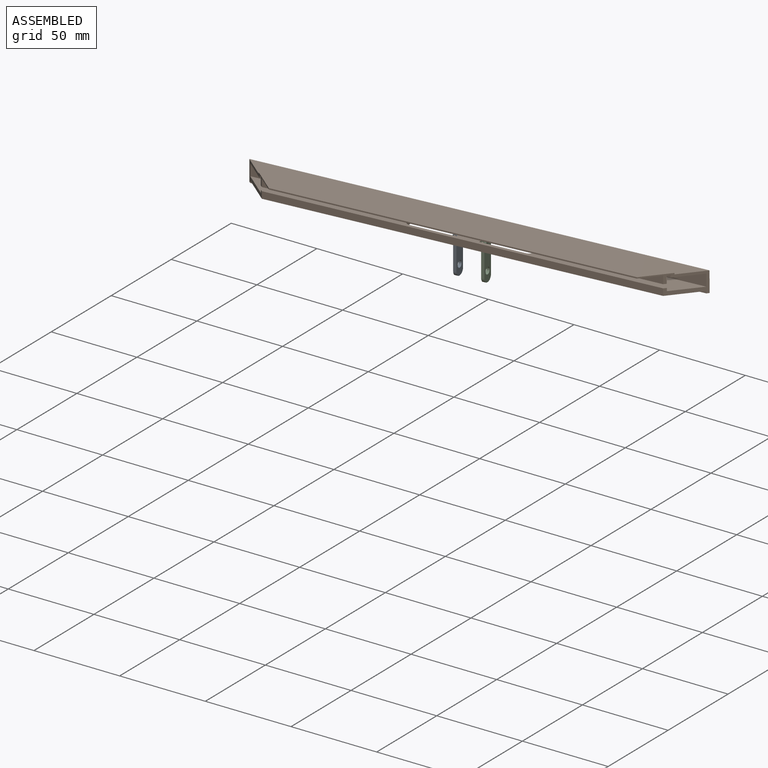
[diagram: assembled view]
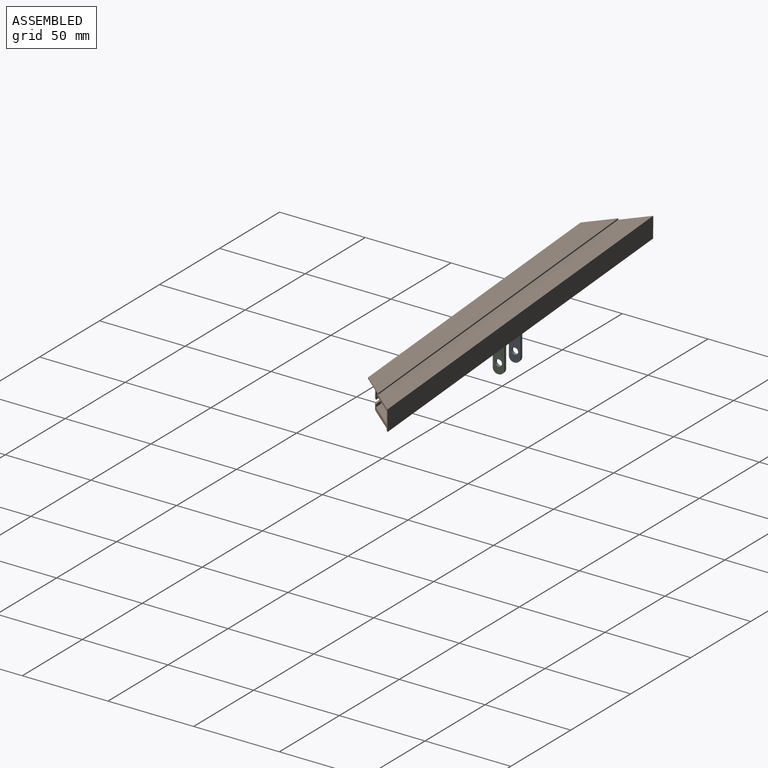
[diagram: assembled view, second angle]
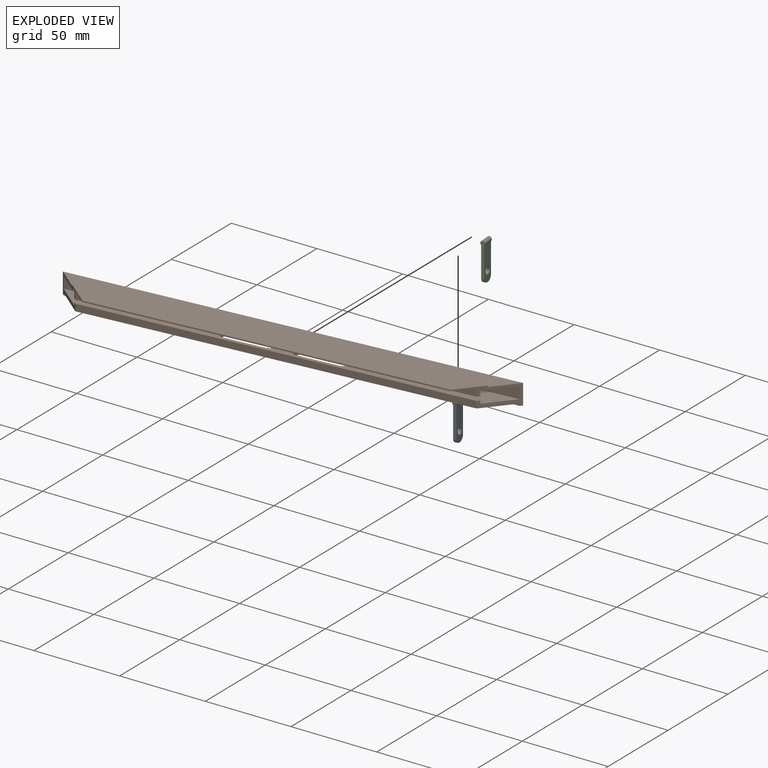
[diagram: exploded view]
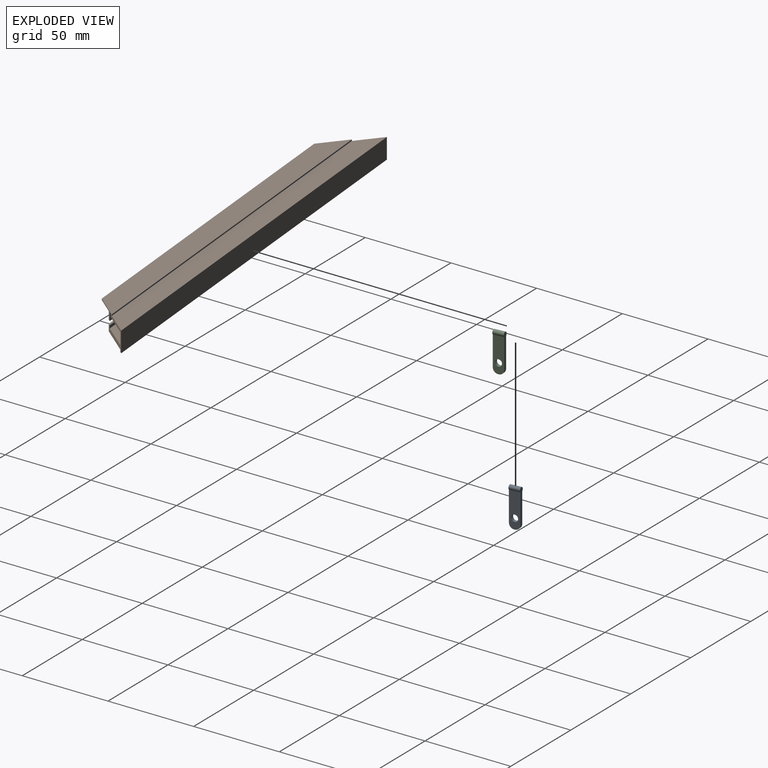
[diagram: exploded view, second angle]
ASSEMBLY  parts=3 mates=2
PART A: 9 faces, bbox 22.8x6.4x2.7 mm
  f0: plane 19.77x2.71mm, normal (0,1,0), area 36.5mm2, adj f3,f6,f7,f8
  f1: plane 19.77x2.71mm, normal (0,-1,0), area 36.5mm2, adj f2,f6,f7,f8
  f2: cylinder r=3mm len=3mm, axis (0,0,1), area 8.4mm2, adj f1,f4,f6,f7
  f3: cylinder r=3mm len=3mm, axis (0,0,-1), area 8.4mm2, adj f0,f4,f6,f7
  f4: plane 1.79x0.35mm, normal (-1,0,0), area 0.6mm2, adj f2,f3,f6,f7
  f5: cylinder r=1.91mm len=3.82mm, axis (0,0,-1), area 21.5mm2, adj f6,f7
  f6: plane 20.39x6.35mm, normal (0,0,-1), area 114.2mm2, adj f0,f1,f2,f3,f4,f5,f8
  f7: plane 20.39x6.35mm, normal (0,0,1), area 114.2mm2, adj f0,f1,f2,f3,f4,f5,f8
  f8: cylinder r=1.36mm len=6.35mm, axis (0,-1,0), area 41.7mm2, adj f0,f1,f6,f7
PART B: 42 faces, bbox 254x25.4x12.7 mm
  f0: cylinder r=0.81mm len=1.61mm, axis (0,1,0), area 4.6mm2, adj f1,f30
  f1: plane 1.61x1.61mm, normal (0,1,0), area 2mm2, adj f0
  f2: plane 2.29x2.15mm, normal (-1,0,0), area 4.9mm2, adj f4,f5,f26,f27
  f3: plane 25.4x25.4mm, normal (0.71,-0.71,0), area 120.2mm2, adj f6,f7,f8,f11,f12,f13,f14,f15
  f4: cylinder r=3mm len=3mm, axis (0,0,1), area 10.8mm2, adj f2,f10,f26,f27
  f5: cylinder r=3mm len=3mm, axis (0,0,-1), area 10.8mm2, adj f2,f9,f26,f27
  f6: plane 221.53x3.99mm, normal (0,-1,0), area 883.2mm2, adj f3,f7,f27,f29
  f7: plane 224.08x1.27mm, normal (0,0,1), area 283.5mm2, adj f3,f6,f8,f29
  f8: plane 224.08x1.7mm, normal (0,1,0), area 380.2mm2, adj f3,f7,f26,f29
  f9: plane 25.67x2.29mm, normal (0,1,0), area 56.7mm2, adj f5,f26,f27,f28,f38
  f10: plane 25.67x2.29mm, normal (0,-1,0), area 56.7mm2, adj f4,f26,f27,f28,f40
  f11: plane 229.51x0.75mm, normal (0,1,0), area 173.2mm2, adj f3,f13,f25,f29
  f12: plane 254x11.95mm, normal (0,1,0), area 3034.1mm2, adj f3,f13,f15,f29
  f13: plane 254x12.25mm, normal (0,0,1), area 2960.8mm2, adj f3,f11,f12,f29
  f14: plane 251.73x1.26mm, normal (0,-1,0), area 316.4mm2, adj f3,f15,f27,f29
  f15: plane 254x1.14mm, normal (0,0,-1), area 287mm2, adj f3,f12,f14,f29
  f16: plane 221.53x9.17mm, normal (0,0,-1), area 1946.5mm2, adj f3,f23,f24,f29
  f17: plane 251.73x6.87mm, normal (0,-1,0), area 1729.7mm2, adj f3,f18,f26,f29
  f18: plane 251.73x12.47mm, normal (0,0,-1), area 2983.5mm2, adj f3,f17,f19,f29
  f19: plane 226.79x1.53mm, normal (0,-1,0), area 346.3mm2, adj f3,f18,f20,f29
  f20: plane 226.79x1.36mm, normal (0,0,-1), area 306mm2, adj f3,f19,f21,f29
  f21: plane 224.08x4.5mm, normal (0,1,0), area 1007.4mm2, adj f3,f20,f22,f29
  f22: plane 224.08x1.27mm, normal (0,0,-1), area 283.5mm2, adj f3,f21,f23,f29
  f23: plane 221.53x4.5mm, normal (0,-1,0), area 996mm2, adj f3,f16,f22,f29
  f24: plane 203.2x0.75mm, normal (0,-1,0), area 153.4mm2, adj f3,f16,f25,f29
  f25: plane 229.51x13.15mm, normal (0,0,1), area 2845.6mm2, adj f3,f11,f24,f29
  f26: plane 251.73x13.83mm, normal (0,0,1), area 2829.9mm2, adj f2,f3,f4,f5,f8,f9,f10,f17
  f27: plane 251.73x15.1mm, normal (0,0,-1), area 3113.4mm2, adj f2,f3,f4,f5,f6,f9,f10,f14
  f28: plane 8.15x2.29mm, normal (1,0,0), area 18.7mm2, adj f9,f10,f26,f27
  f29: plane 25.4x25.4mm, normal (-0.71,-0.71,0), area 120.2mm2, adj f6,f7,f8,f11,f12,f13,f14,f15
  f30: plane 25.67x2.29mm, normal (0,1,0), area 56.7mm2, adj f0,f26,f27,f34,f35
  f31: plane 2.29x2.15mm, normal (1,0,0), area 4.9mm2, adj f26,f27,f33,f34
  f32: plane 25.67x2.29mm, normal (0,-1,0), area 56.7mm2, adj f26,f27,f33,f35,f36
  f33: cylinder r=3mm len=3mm, axis (0,0,-1), area 10.8mm2, adj f26,f27,f31,f32
  f34: cylinder r=3mm len=3mm, axis (0,0,1), area 10.8mm2, adj f26,f27,f30,f31
  f35: plane 8.15x2.29mm, normal (-1,0,0), area 18.7mm2, adj f26,f27,f30,f32
  f36: cylinder r=0.81mm len=1.61mm, axis (0,-1,0), area 4.6mm2, adj f32,f37
  f37: plane 1.61x1.61mm, normal (0,-1,0), area 2mm2, adj f36
  f38: cylinder r=0.81mm len=1.61mm, axis (0,1,0), area 4.6mm2, adj f9,f39
  f39: plane 1.61x1.61mm, normal (0,1,0), area 2mm2, adj f38
  f40: cylinder r=0.81mm len=1.61mm, axis (0,-1,0), area 4.6mm2, adj f10,f41
  f41: plane 1.61x1.61mm, normal (0,-1,0), area 2mm2, adj f40
PART C: 9 faces, bbox 22.8x6.4x2.7 mm
  f0: plane 19.77x2.71mm, normal (0,1,0), area 36.5mm2, adj f2,f3,f4,f5
  f1: plane 19.77x2.71mm, normal (0,-1,0), area 36.5mm2, adj f2,f3,f4,f6
  f2: cylinder r=1.36mm len=6.35mm, axis (0,-1,0), area 41.7mm2, adj f0,f1,f3,f4
  f3: plane 20.39x6.35mm, normal (0,0,-1), area 114.2mm2, adj f0,f1,f2,f5,f6,f7,f8
  f4: plane 20.39x6.35mm, normal (0,0,1), area 114.2mm2, adj f0,f1,f2,f5,f6,f7,f8
  f5: cylinder r=3mm len=3mm, axis (0,0,-1), area 8.4mm2, adj f0,f3,f4,f7
  f6: cylinder r=3mm len=3mm, axis (0,0,1), area 8.4mm2, adj f1,f3,f4,f7
  f7: plane 1.79x0.35mm, normal (1,0,0), area 0.6mm2, adj f3,f4,f5,f6
  f8: cylinder r=1.91mm len=3.82mm, axis (0,0,-1), area 21.5mm2, adj f3,f4
PLACE A rot(axis=(0.04,-1,0.04),90.1deg) t=(-10.2,-115.32,-14.9)mm
PLACE B rot(axis=(0,-0.02,1),5deg) t=(-5.16,-114.88,-25.25)mm
PLACE C rot(axis=(-0.04,1,0.04),90.1deg) t=(-0.13,-114.44,-14.87)mm
MATE revolute A.f8 <-> B.f0  axis (0.09,-1,0) through (-14.16,-100.46,-22.61)mm
MATE revolute C.f2 <-> B.f38  axis (0.09,-1,0) through (1.19,-99.12,-22.58)mm
